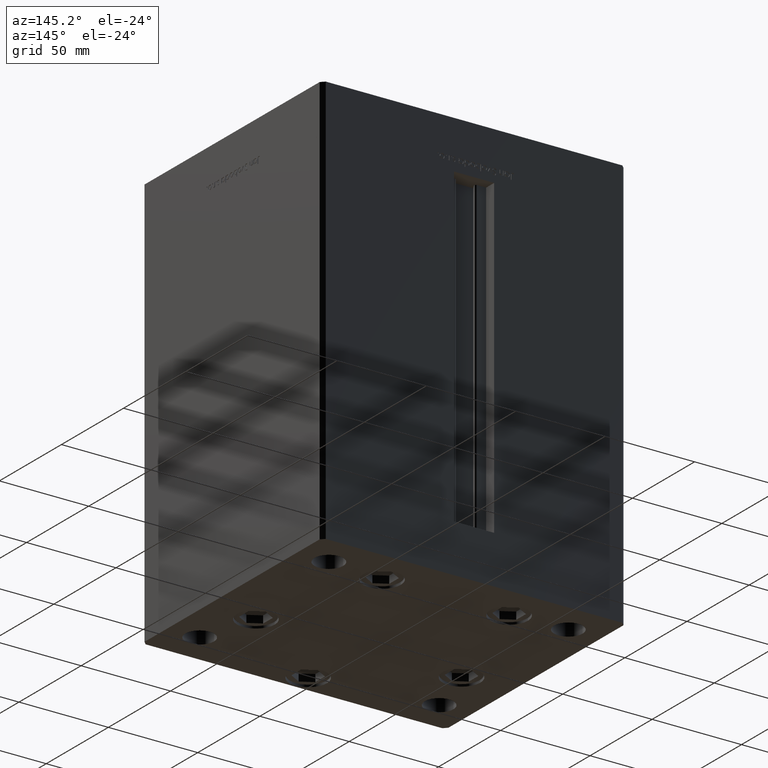
[diagram: clean part render]
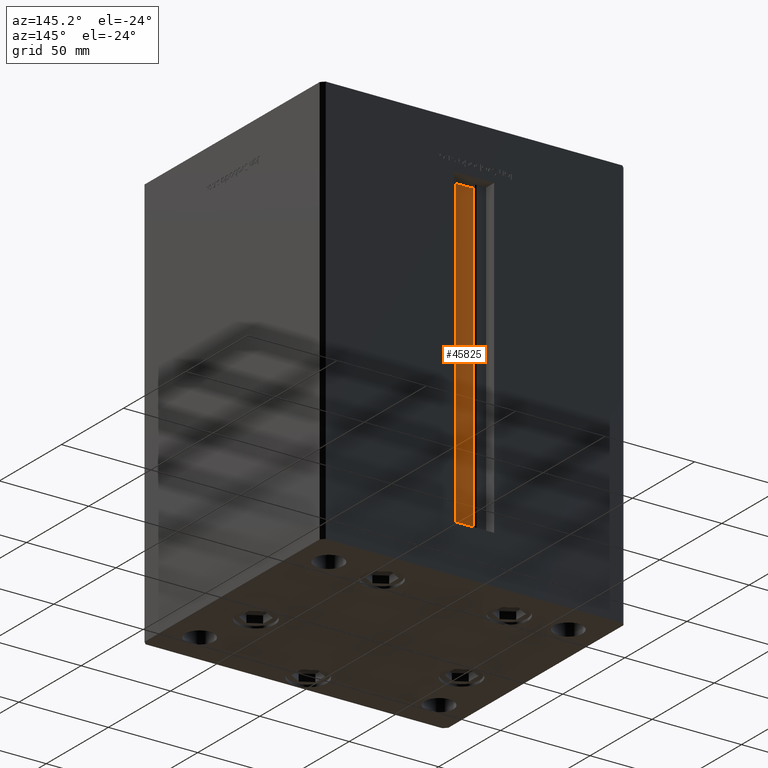
[diagram: same view with one face highlighted and labeled with its STEP entity id]
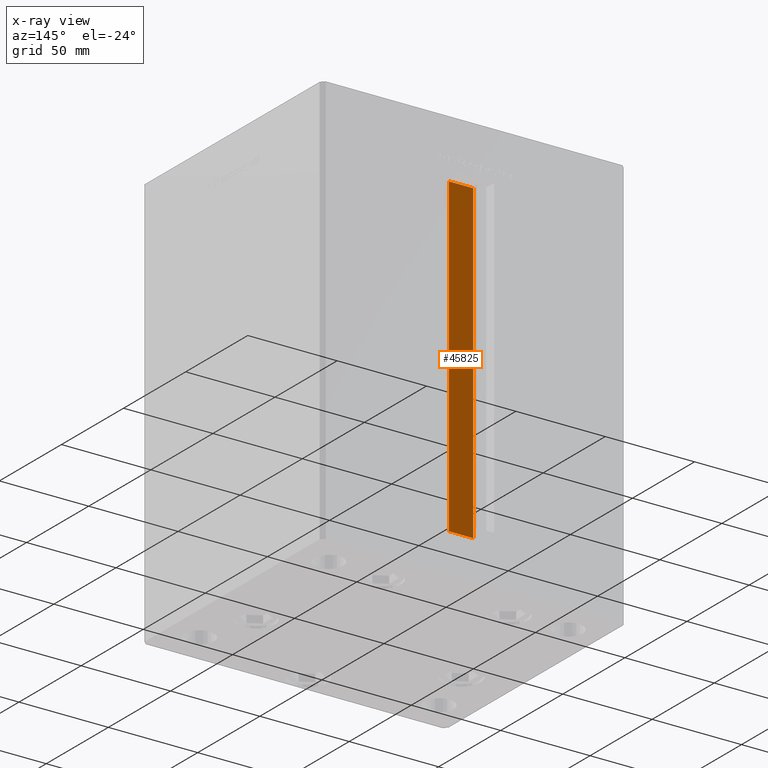
[diagram: x-ray of the same camera — body ghosted, the highlighted face saturated]
A machine part, auxiliary view. The second image highlights one B-rep face of the part: STEP entity #45825.
The next image is the same camera in x-ray: the body ghosted, the highlighted face saturated — about 0% of this face is hidden behind the body in this view.
In plain terms, the highlighted planar face has unit normal (0, -1, 0).
Its self-contained STEP definition (entity closure, byte-faithful):
#3117 = PLANE ( 'NONE',  #10121 ) ;
#3910 = EDGE_CURVE ( 'NONE', #24016, #27486, #10941, .T. ) ;
#5172 = LINE ( 'NONE', #41544, #11735 ) ;
#5692 = EDGE_LOOP ( 'NONE', ( #38292, #14879, #31934, #46493 ) ) ;
#10121 = AXIS2_PLACEMENT_3D ( 'NONE', #51345, #31845, #47390 ) ;
#10516 = LINE ( 'NONE', #50317, #32433 ) ;
#10941 = LINE ( 'NONE', #50737, #43993 ) ;
#11735 = VECTOR ( 'NONE', #37847, 1000.000000000000000 ) ;
#12571 = CARTESIAN_POINT ( 'NONE',  ( 6.876153656360466826, 61.99999999999985079, 176.0000000000000000 ) ) ;
#14879 = ORIENTED_EDGE ( 'NONE', *, *, #16034, .F. ) ;
#16034 = EDGE_CURVE ( 'NONE', #24016, #26852, #10516, .T. ) ;
#18862 = CARTESIAN_POINT ( 'NONE',  ( 0.000000000000000000, 61.99999999999985079, 176.0000000000000000 ) ) ;
#21647 = CARTESIAN_POINT ( 'NONE',  ( -6.876153656360466826, 61.99999999999985079, 176.0000000000000000 ) ) ;
#24016 = VERTEX_POINT ( 'NONE', #29920 ) ;
#26753 = VECTOR ( 'NONE', #30730, 1000.000000000000000 ) ;
#26778 = DIRECTION ( 'NONE',  ( -0.000000000000000000, -0.000000000000000000, 1.000000000000000000 ) ) ;
#26852 = VERTEX_POINT ( 'NONE', #49435 ) ;
#27486 = VERTEX_POINT ( 'NONE', #21647 ) ;
#29920 = CARTESIAN_POINT ( 'NONE',  ( -6.876153656360466826, 61.99999999999985079, 0.000000000000000000 ) ) ;
#30730 = DIRECTION ( 'NONE',  ( -1.000000000000000000, 0.000000000000000000, 0.000000000000000000 ) ) ;
#31845 = DIRECTION ( 'NONE',  ( 0.000000000000000000, -1.000000000000000000, -0.000000000000000000 ) ) ;
#31934 = ORIENTED_EDGE ( 'NONE', *, *, #3910, .T. ) ;
#32433 = VECTOR ( 'NONE', #37924, 1000.000000000000000 ) ;
#32592 = EDGE_CURVE ( 'NONE', #46050, #27486, #35193, .T. ) ;
#35193 = LINE ( 'NONE', #18862, #26753 ) ;
#37847 = DIRECTION ( 'NONE',  ( -0.000000000000000000, -0.000000000000000000, 1.000000000000000000 ) ) ;
#37924 = DIRECTION ( 'NONE',  ( 1.000000000000000000, -0.000000000000000000, -0.000000000000000000 ) ) ;
#38292 = ORIENTED_EDGE ( 'NONE', *, *, #42600, .F. ) ;
#39218 = FACE_OUTER_BOUND ( 'NONE', #5692, .T. ) ;
#41544 = CARTESIAN_POINT ( 'NONE',  ( 6.876153656360466826, 61.99999999999985079, 0.000000000000000000 ) ) ;
#42600 = EDGE_CURVE ( 'NONE', #26852, #46050, #5172, .T. ) ;
#43993 = VECTOR ( 'NONE', #26778, 1000.000000000000000 ) ;
#45825 = ADVANCED_FACE ( 'NONE', ( #39218 ), #3117, .F. ) ;
#46050 = VERTEX_POINT ( 'NONE', #12571 ) ;
#46493 = ORIENTED_EDGE ( 'NONE', *, *, #32592, .F. ) ;
#47390 = DIRECTION ( 'NONE',  ( 0.000000000000000000, 0.000000000000000000, -1.000000000000000000 ) ) ;
#49435 = CARTESIAN_POINT ( 'NONE',  ( 6.876153656360466826, 61.99999999999985079, 0.000000000000000000 ) ) ;
#50317 = CARTESIAN_POINT ( 'NONE',  ( 6.876153656360466826, 61.99999999999985079, 0.000000000000000000 ) ) ;
#50737 = CARTESIAN_POINT ( 'NONE',  ( -6.876153656360466826, 61.99999999999985079, 0.000000000000000000 ) ) ;
#51345 = CARTESIAN_POINT ( 'NONE',  ( 6.876153656360466826, 61.99999999999985079, 0.000000000000000000 ) ) ;